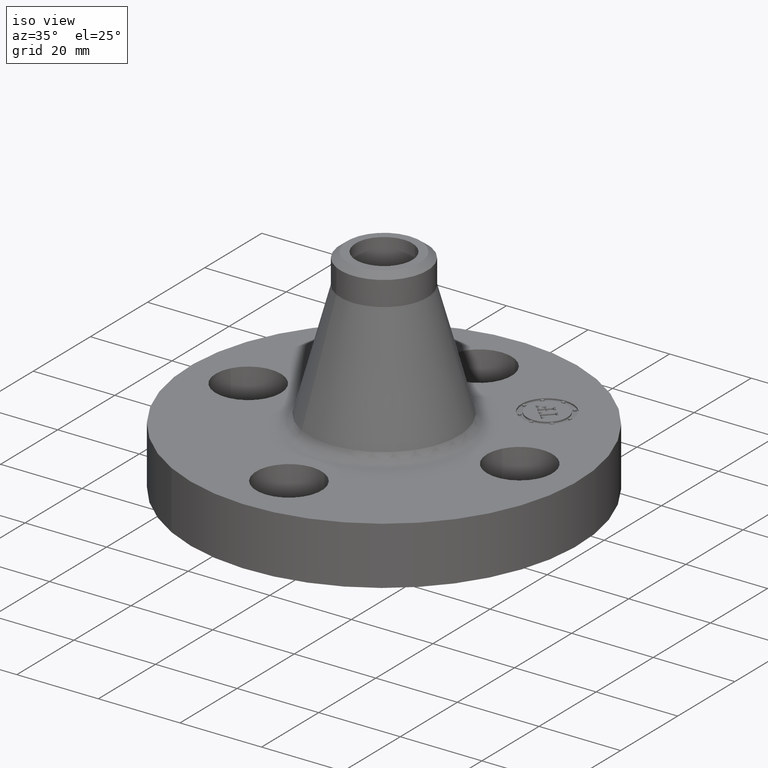
[diagram: clean part render]
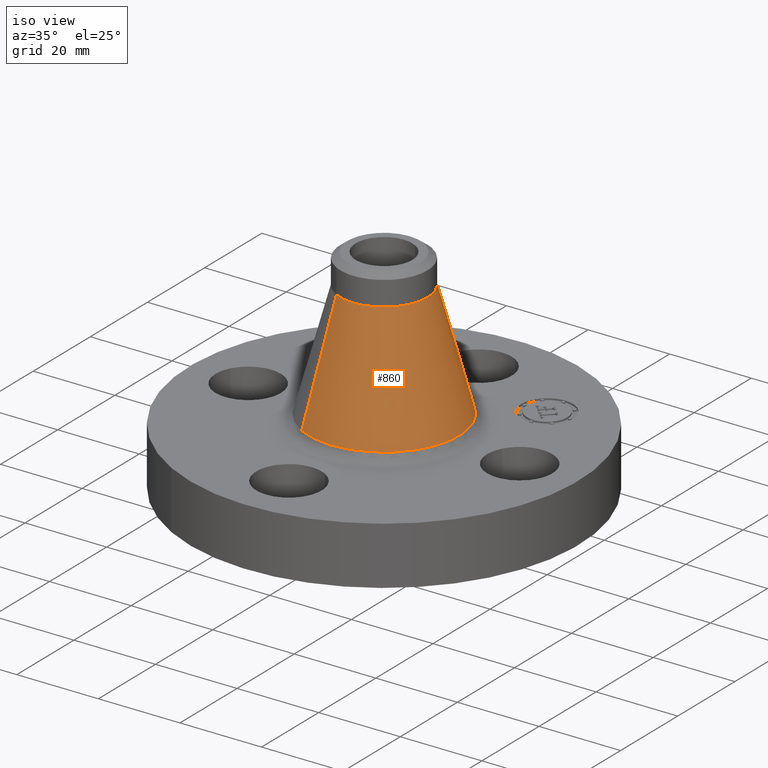
[diagram: same view with one face highlighted and labeled with its STEP entity id]
A machine part, iso view. The second image highlights one B-rep face of the part: STEP entity #860.
In plain terms, the highlighted conical surface has half-angle 15.238 deg.
Its self-contained STEP definition (entity closure, byte-faithful):
#679=AXIS2_PLACEMENT_3D('Circle Axis2P3D',#677,#678,$) ;
#847=AXIS2_PLACEMENT_3D('Cone Axis2P3D',#844,#845,#846) ;
#851=AXIS2_PLACEMENT_3D('Circle Axis2P3D',#849,#850,$) ;
#643=CARTESIAN_POINT('Vertex',(-0.348016189981,-0.637039362717,0.648459925201)) ;
#650=CARTESIAN_POINT('Vertex',(0.348016189981,0.637039362717,0.648459925201)) ;
#677=CARTESIAN_POINT('Axis2P3D Location',(0.,0.,0.648459925201)) ;
#811=CARTESIAN_POINT('Line Origine',(-0.274687458098,-0.502812019356,1.20993091671)) ;
#815=CARTESIAN_POINT('Vertex',(-0.201358726215,-0.368584675996,1.77140190821)) ;
#822=CARTESIAN_POINT('Vertex',(0.201358726215,0.368584675996,1.77140190821)) ;
#825=CARTESIAN_POINT('Line Origine',(0.274687458098,0.502812019356,1.20993091671)) ;
#844=CARTESIAN_POINT('Axis2P3D Location',(0.,0.,1.77140190821)) ;
#849=CARTESIAN_POINT('Axis2P3D Location',(0.,0.,1.77140190821)) ;
#678=DIRECTION('Axis2P3D Direction',(-0.,0.,-0.0393700787402)) ;
#812=DIRECTION('Vector Direction',(-0.00496099650577,-0.00908104319126,-0.0379858693231)) ;
#826=DIRECTION('Vector Direction',(0.00496099650577,0.00908104319126,-0.0379858693231)) ;
#845=DIRECTION('Axis2P3D Direction',(0.,0.,-0.0393700787402)) ;
#846=DIRECTION('Axis2P3D XDirection',(0.0188750212049,0.0345504945626,0.)) ;
#850=DIRECTION('Axis2P3D Direction',(-0.,0.,-0.0393700787402)) ;
#813=VECTOR('Line Direction',#812,0.0393700787402) ;
#827=VECTOR('Line Direction',#826,0.0393700787402) ;
#855=ORIENTED_EDGE('',*,*,#681,.F.) ;
#856=ORIENTED_EDGE('',*,*,#829,.T.) ;
#857=ORIENTED_EDGE('',*,*,#853,.T.) ;
#858=ORIENTED_EDGE('',*,*,#817,.F.) ;
#860=ADVANCED_FACE('PartBody',(#859),#848,.T.) ;
#680=CIRCLE('generated circle',#679,0.725902485283) ;
#852=CIRCLE('generated circle',#851,0.420000000002) ;
#848=CONICAL_SURFACE('Cone',#847,0.420000000002,0.265958259364) ;
#681=EDGE_CURVE('',#651,#644,#680,.T.) ;
#817=EDGE_CURVE('',#644,#816,#814,.F.) ;
#829=EDGE_CURVE('',#651,#823,#828,.F.) ;
#853=EDGE_CURVE('',#823,#816,#852,.T.) ;
#854=EDGE_LOOP('',(#855,#856,#857,#858)) ;
#859=FACE_OUTER_BOUND('',#854,.T.) ;
#814=LINE('Line',#811,#813) ;
#828=LINE('Line',#825,#827) ;
#644=VERTEX_POINT('',#643) ;
#651=VERTEX_POINT('',#650) ;
#816=VERTEX_POINT('',#815) ;
#823=VERTEX_POINT('',#822) ;